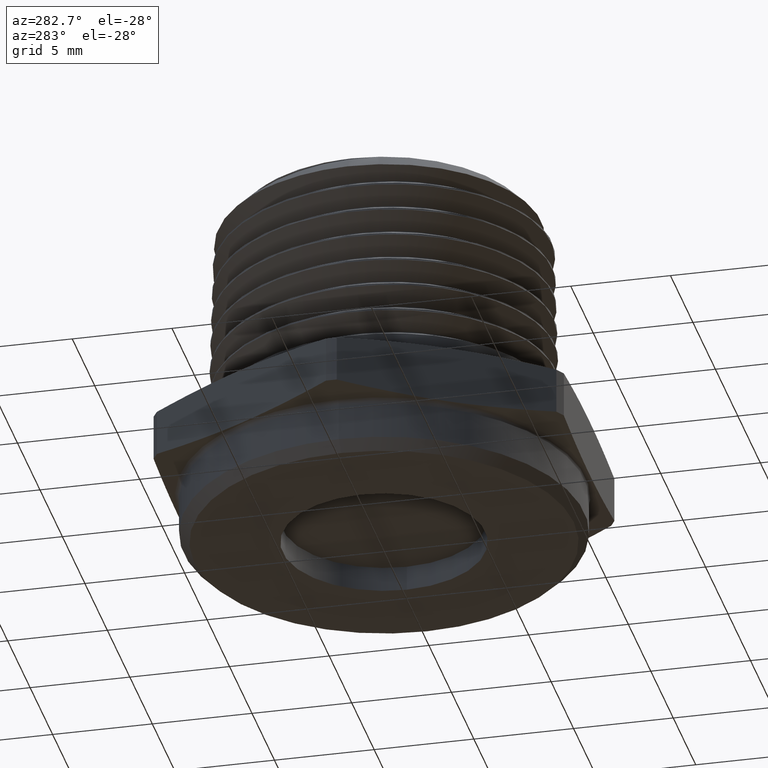
[diagram: clean part render]
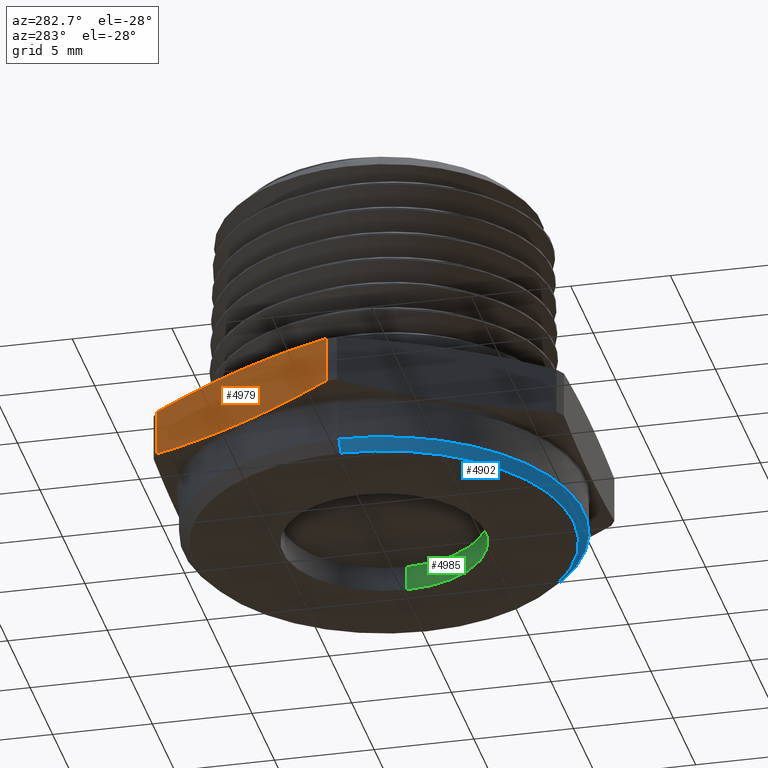
[diagram: same view with three faces highlighted in distinct colors, each labeled with its STEP entity id]
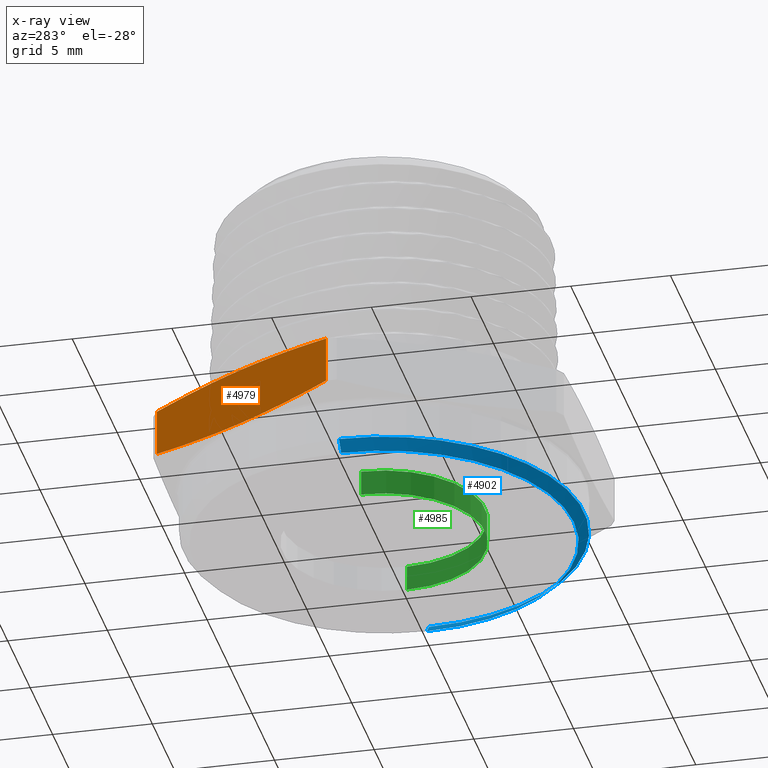
[diagram: x-ray of the same camera — body ghosted, the three highlighted faces saturated]
A machine part, auxiliary view with three faces highlighted in distinct colors.
The next image is the same camera in x-ray (body ghosted, the three faces saturated) — at least one of them is partly hidden behind the body in this view.
Their STEP definitions:

[orange] entity #4979 — the highlighted planar face has unit normal (0.866, -0.5, 0).
#326 = CARTESIAN_POINT ( 'NONE',  ( -0.2338268590217984500, 0.4050000000000000300, 0.1200000000000000000 ) ) ;
#328 = PLANE ( 'NONE',  #2603 ) ;
#330 = DIRECTION ( 'NONE',  ( 0.8660254037844386000, -0.5000000000000002200, 0.0000000000000000000 ) ) ;
#331 = DIRECTION ( 'NONE',  ( 0.5000000000000001100, 0.8660254037844384900, 0.0000000000000000000 ) ) ;
#441 = LINE ( 'NONE', #4537, #449 ) ;
#449 = VECTOR ( 'NONE', #4538, 39.37007874015748100 ) ;
#465 = LINE ( 'NONE', #4554, #467 ) ;
#467 = VECTOR ( 'NONE', #4555, 39.37007874015748100 ) ;
#603 = FACE_OUTER_BOUND ( 'NONE', #1158, .T. ) ;
#635 = VERTEX_POINT ( 'NONE', #5272 ) ;
#686 = VERTEX_POINT ( 'NONE', #5033 ) ;
#718 = VERTEX_POINT ( 'NONE', #5176 ) ;
#826 = EDGE_CURVE ( 'NONE', #686, #635, #1046, .T. ) ;
#852 = EDGE_CURVE ( 'NONE', #718, #4005, #1054, .T. ) ;
#908 = EDGE_CURVE ( 'NONE', #635, #718, #441, .T. ) ;
#919 = EDGE_CURVE ( 'NONE', #4005, #686, #465, .T. ) ;
#1046 = B_SPLINE_CURVE_WITH_KNOTS ( 'NONE', 3,
 ( #3339, #3336, #3372, #3373, #3374 ),
 .UNSPECIFIED., .F., .F.,
 ( 4, 1, 4 ),
 ( 1.960092707719078500E-006, 0.005630175714661443200, 0.01125839133661516800 ),
 .UNSPECIFIED. ) ;
#1054 = B_SPLINE_CURVE_WITH_KNOTS ( 'NONE', 3,
 ( #3642, #3648, #3694, #3695, #3696 ),
 .UNSPECIFIED., .F., .F.,
 ( 4, 1, 4 ),
 ( 1.960092708425633100E-006, 0.005630175714662151800, 0.01125839133661587700 ),
 .UNSPECIFIED. ) ;
#1158 = EDGE_LOOP ( 'NONE', ( #3997, #3947, #3941, #4000 ) ) ;
#1801 = CARTESIAN_POINT ( 'NONE',  ( -0.4615319346341490400, 0.01060323989809624400, 0.01416768512986962300 ) ) ;
#2603 = AXIS2_PLACEMENT_3D ( 'NONE', #326, #330, #331 ) ;
#3336 = CARTESIAN_POINT ( 'NONE',  ( -0.4246013859336651400, 0.07456882659873088900, 0.1133677952827659300 ) ) ;
#3339 = CARTESIAN_POINT ( 'NONE',  ( -0.4615319346341490400, 0.01060323989809624400, 0.1058323148701303800 ) ) ;
#3372 = CARTESIAN_POINT ( 'NONE',  ( -0.3507402885326975600, 0.2025000000000002900, 0.1223810734838337700 ) ) ;
#3373 = CARTESIAN_POINT ( 'NONE',  ( -0.2768791911317302600, 0.3304311734012693700, 0.1133677952827659200 ) ) ;
#3374 = CARTESIAN_POINT ( 'NONE',  ( -0.2399486424312463900, 0.3943967601019040500, 0.1058323148701303800 ) ) ;
#3642 = CARTESIAN_POINT ( 'NONE',  ( -0.2399486424312463900, 0.3943967601019040500, 0.01416768512986962300 ) ) ;
#3648 = CARTESIAN_POINT ( 'NONE',  ( -0.2768791911317301000, 0.3304311734012694300, 0.006632204717234098600 ) ) ;
#3694 = CARTESIAN_POINT ( 'NONE',  ( -0.3507402885326975100, 0.2025000000000002100, -0.002381073483833779500 ) ) ;
#3695 = CARTESIAN_POINT ( 'NONE',  ( -0.4246013859336654200, 0.07456882659873088900, 0.006632204717234086400 ) ) ;
#3696 = CARTESIAN_POINT ( 'NONE',  ( -0.4615319346341490400, 0.01060323989809624400, 0.01416768512986962300 ) ) ;
#3941 = ORIENTED_EDGE ( 'NONE', *, *, #826, .T. ) ;
#3947 = ORIENTED_EDGE ( 'NONE', *, *, #919, .T. ) ;
#3997 = ORIENTED_EDGE ( 'NONE', *, *, #852, .T. ) ;
#4000 = ORIENTED_EDGE ( 'NONE', *, *, #908, .T. ) ;
#4005 = VERTEX_POINT ( 'NONE', #1801 ) ;
#4537 = CARTESIAN_POINT ( 'NONE',  ( -0.2399486424312463900, 0.3943967601019040500, 0.0000000000000000000 ) ) ;
#4538 = DIRECTION ( 'NONE',  ( -0.0000000000000000000, -0.0000000000000000000, -1.000000000000000000 ) ) ;
#4554 = CARTESIAN_POINT ( 'NONE',  ( -0.4615319346341490400, 0.01060323989809624400, 0.0000000000000000000 ) ) ;
#4555 = DIRECTION ( 'NONE',  ( 0.0000000000000000000, 0.0000000000000000000, 1.000000000000000000 ) ) ;
#4979 = ADVANCED_FACE ( 'NONE', ( #603 ), #328, .F. ) ;
#5033 = CARTESIAN_POINT ( 'NONE',  ( -0.4615319346341490400, 0.01060323989809624400, 0.1058323148701303800 ) ) ;
#5176 = CARTESIAN_POINT ( 'NONE',  ( -0.2399486424312463900, 0.3943967601019040500, 0.01416768512986962300 ) ) ;
#5272 = CARTESIAN_POINT ( 'NONE',  ( -0.2399486424312463900, 0.3943967601019040500, 0.1058323148701303800 ) ) ;

[blue] entity #4902 — the highlighted conical surface has half-angle 45 deg.
#399 = LINE ( 'NONE', #3708, #401 ) ;
#401 = VECTOR ( 'NONE', #3709, 39.37007874015748900 ) ;
#489 = CIRCLE ( 'NONE', #999, 0.3749999999999999400 ) ;
#491 = CIRCLE ( 'NONE', #1001, 0.3950000000000000200 ) ;
#514 = FACE_OUTER_BOUND ( 'NONE', #1132, .T. ) ;
#518 = CONICAL_SURFACE ( 'NONE', #1013, 0.3749999999999999400, 0.7853981633974517200 ) ;
#620 = ORIENTED_EDGE ( 'NONE', *, *, #827, .F. ) ;
#627 = VERTEX_POINT ( 'NONE', #5251 ) ;
#668 = VERTEX_POINT ( 'NONE', #5228 ) ;
#700 = VERTEX_POINT ( 'NONE', #5226 ) ;
#786 = VERTEX_POINT ( 'NONE', #5217 ) ;
#827 = EDGE_CURVE ( 'NONE', #786, #700, #5280, .T. ) ;
#859 = EDGE_CURVE ( 'NONE', #668, #627, #399, .T. ) ;
#942 = EDGE_CURVE ( 'NONE', #668, #786, #489, .T. ) ;
#944 = EDGE_CURVE ( 'NONE', #700, #627, #491, .T. ) ;
#999 = AXIS2_PLACEMENT_3D ( 'NONE', #1729, #1730, #1731 ) ;
#1001 = AXIS2_PLACEMENT_3D ( 'NONE', #1738, #1739, #1740 ) ;
#1013 = AXIS2_PLACEMENT_3D ( 'NONE', #1824, #1825, #1822 ) ;
#1077 = VECTOR ( 'NONE', #3375, 39.37007874015748900 ) ;
#1132 = EDGE_LOOP ( 'NONE', ( #620, #1881, #1880, #1879 ) ) ;
#1729 = CARTESIAN_POINT ( 'NONE',  ( 0.0000000000000000000, 0.0000000000000000000, -0.1000000000000000100 ) ) ;
#1730 = DIRECTION ( 'NONE',  ( 0.0000000000000000000, 0.0000000000000000000, -1.000000000000000000 ) ) ;
#1731 = DIRECTION ( 'NONE',  ( -1.000000000000000000, 0.0000000000000000000, 0.0000000000000000000 ) ) ;
#1738 = CARTESIAN_POINT ( 'NONE',  ( 0.0000000000000000000, 0.0000000000000000000, -0.08000000000000008500 ) ) ;
#1739 = DIRECTION ( 'NONE',  ( 0.0000000000000000000, 0.0000000000000000000, 1.000000000000000000 ) ) ;
#1740 = DIRECTION ( 'NONE',  ( -1.000000000000000000, 0.0000000000000000000, 0.0000000000000000000 ) ) ;
#1822 = DIRECTION ( 'NONE',  ( 1.000000000000000000, 0.0000000000000000000, 0.0000000000000000000 ) ) ;
#1824 = CARTESIAN_POINT ( 'NONE',  ( 0.0000000000000000000, 0.0000000000000000000, -0.1000000000000000100 ) ) ;
#1825 = DIRECTION ( 'NONE',  ( 0.0000000000000000000, 0.0000000000000000000, 1.000000000000000000 ) ) ;
#1879 = ORIENTED_EDGE ( 'NONE', *, *, #944, .F. ) ;
#1880 = ORIENTED_EDGE ( 'NONE', *, *, #859, .T. ) ;
#1881 = ORIENTED_EDGE ( 'NONE', *, *, #942, .F. ) ;
#3371 = CARTESIAN_POINT ( 'NONE',  ( -0.3749999999999999400, 4.592425496802573600E-017, -0.1000000000000000100 ) ) ;
#3375 = DIRECTION ( 'NONE',  ( -0.7071067811865499000, 8.659560562354962400E-017, 0.7071067811865450200 ) ) ;
#3708 = CARTESIAN_POINT ( 'NONE',  ( 0.3749999999999999400, 0.0000000000000000000, -0.1000000000000000100 ) ) ;
#3709 = DIRECTION ( 'NONE',  ( 0.7071067811865499000, 0.0000000000000000000, 0.7071067811865450200 ) ) ;
#4902 = ADVANCED_FACE ( 'NONE', ( #514 ), #518, .T. ) ;
#5217 = CARTESIAN_POINT ( 'NONE',  ( -0.3749999999999999400, 4.714890176717309300E-017, -0.1000000000000000100 ) ) ;
#5226 = CARTESIAN_POINT ( 'NONE',  ( -0.3950000000000000200, 4.837354856632045600E-017, -0.08000000000000008500 ) ) ;
#5228 = CARTESIAN_POINT ( 'NONE',  ( 0.3749999999999999400, 0.0000000000000000000, -0.1000000000000000100 ) ) ;
#5251 = CARTESIAN_POINT ( 'NONE',  ( 0.3950000000000000200, 0.0000000000000000000, -0.08000000000000008500 ) ) ;
#5280 = LINE ( 'NONE', #3371, #1077 ) ;

[green] entity #4985 — the highlighted cylindrical surface (partial cylindrical patch) has radius 5.08 mm, axis along (-0, -0, -1).
#348 = DIRECTION ( 'NONE',  ( -1.000000000000000000, 0.0000000000000000000, 0.0000000000000000000 ) ) ;
#349 = CARTESIAN_POINT ( 'NONE',  ( 1.224646799147352400E-018, 0.0000000000000000000, -0.1000000000000000100 ) ) ;
#350 = DIRECTION ( 'NONE',  ( -2.947696877789500000E-017, -0.0000000000000000000, -1.000000000000000000 ) ) ;
#426 = LINE ( 'NONE', #4202, #427 ) ;
#427 = VECTOR ( 'NONE', #4204, 39.37007874015748100 ) ;
#589 = FACE_OUTER_BOUND ( 'NONE', #1148, .T. ) ;
#605 = CYLINDRICAL_SURFACE ( 'NONE', #2611, 0.1999999999999999800 ) ;
#672 = VERTEX_POINT ( 'NONE', #5275 ) ;
#725 = VERTEX_POINT ( 'NONE', #5257 ) ;
#748 = VERTEX_POINT ( 'NONE', #5256 ) ;
#782 = VERTEX_POINT ( 'NONE', #5213 ) ;
#798 = EDGE_CURVE ( 'NONE', #782, #748, #1849, .T. ) ;
#822 = EDGE_CURVE ( 'NONE', #782, #725, #5289, .T. ) ;
#824 = EDGE_CURVE ( 'NONE', #725, #672, #5284, .T. ) ;
#885 = EDGE_CURVE ( 'NONE', #748, #672, #426, .T. ) ;
#955 = AXIS2_PLACEMENT_3D ( 'NONE', #5171, #5169, #5168 ) ;
#963 = AXIS2_PLACEMENT_3D ( 'NONE', #3344, #3345, #3346 ) ;
#1148 = EDGE_LOOP ( 'NONE', ( #4033, #4003, #3934, #4010 ) ) ;
#1849 = CIRCLE ( 'NONE', #955, 0.1999999999999999800 ) ;
#2611 = AXIS2_PLACEMENT_3D ( 'NONE', #349, #350, #348 ) ;
#3338 = CARTESIAN_POINT ( 'NONE',  ( 0.1999999999999999800, 2.449293598294706200E-017, -0.1000000000000000100 ) ) ;
#3340 = DIRECTION ( 'NONE',  ( -2.947696877789500000E-017, -0.0000000000000000000, -1.000000000000000000 ) ) ;
#3344 = CARTESIAN_POINT ( 'NONE',  ( 1.224646799147352000E-018, 0.0000000000000000000, -0.1000000000000000100 ) ) ;
#3345 = DIRECTION ( 'NONE',  ( -2.947696877789500000E-017, -0.0000000000000000000, -1.000000000000000000 ) ) ;
#3346 = DIRECTION ( 'NONE',  ( -1.000000000000000000, 0.0000000000000000000, 0.0000000000000000000 ) ) ;
#3934 = ORIENTED_EDGE ( 'NONE', *, *, #824, .T. ) ;
#4003 = ORIENTED_EDGE ( 'NONE', *, *, #822, .T. ) ;
#4010 = ORIENTED_EDGE ( 'NONE', *, *, #885, .F. ) ;
#4033 = ORIENTED_EDGE ( 'NONE', *, *, #798, .F. ) ;
#4202 = CARTESIAN_POINT ( 'NONE',  ( -0.1999999999999999800, 0.0000000000000000000, -0.1000000000000000100 ) ) ;
#4204 = DIRECTION ( 'NONE',  ( -2.947696877789500000E-017, -0.0000000000000000000, -1.000000000000000000 ) ) ;
#4985 = ADVANCED_FACE ( 'NONE', ( #589 ), #605, .F. ) ;
#5168 = DIRECTION ( 'NONE',  ( -1.000000000000000000, 0.0000000000000000000, 4.268512490100411900E-017 ) ) ;
#5169 = DIRECTION ( 'NONE',  ( -2.947696877789500000E-017, -0.0000000000000000000, -1.000000000000000000 ) ) ;
#5171 = CARTESIAN_POINT ( 'NONE',  ( 2.698495238042102400E-018, 0.0000000000000000000, -0.05000000000000000300 ) ) ;
#5213 = CARTESIAN_POINT ( 'NONE',  ( 0.1999999999999999800, 2.449293598294706200E-017, -0.05000000000000001000 ) ) ;
#5256 = CARTESIAN_POINT ( 'NONE',  ( -0.1999999999999999800, 0.0000000000000000000, -0.04999999999999999600 ) ) ;
#5257 = CARTESIAN_POINT ( 'NONE',  ( 0.1999999999999999800, 2.449293598294706200E-017, -0.1000000000000000100 ) ) ;
#5275 = CARTESIAN_POINT ( 'NONE',  ( -0.1999999999999999800, 0.0000000000000000000, -0.1000000000000000100 ) ) ;
#5284 = CIRCLE ( 'NONE', #963, 0.1999999999999999800 ) ;
#5285 = VECTOR ( 'NONE', #3340, 39.37007874015748100 ) ;
#5289 = LINE ( 'NONE', #3338, #5285 ) ;